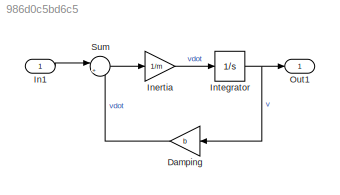
MODEL slx_986d0c5bd6c5
KIND model
CONFIG AbsTol = auto
CONFIG EnableMultiTasking = off
CONFIG FixedStep = auto
CONFIG MaxStep = auto
CONFIG MinStep = auto
CONFIG RelTol = 1e-3
CONFIG SampleTimeConstraint = Unconstrained
CONFIG SolverName = VariableStepAuto
CONFIG StartTime = 0.0
CONFIG StopTime = 120
BLOCK [Gain] Damping
  Gain = b
BLOCK [Inport] In1
BLOCK [Gain] Inertia
  Gain = 1/m
BLOCK [Integrator] Integrator
BLOCK [Outport] Out1
BLOCK [Sum] Sum
  Inputs = |+-
LINE Damping:1 -> Sum:2
LINE In1:1 -> Sum:1
LINE Inertia:1 -> Integrator:1
NET Integrator:1 -> Damping:1, Out1:1
LINE Sum:1 -> Inertia:1
note: NET lines group one-source signal fan-out (src -> all destinations, sorted); 1:1 wires keep LINE
